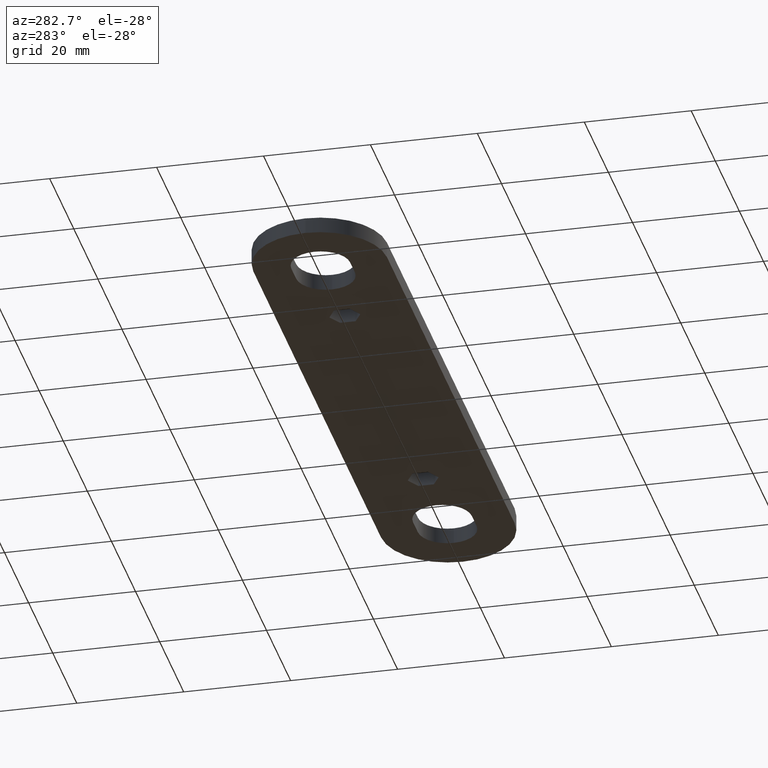
[diagram: clean part render]
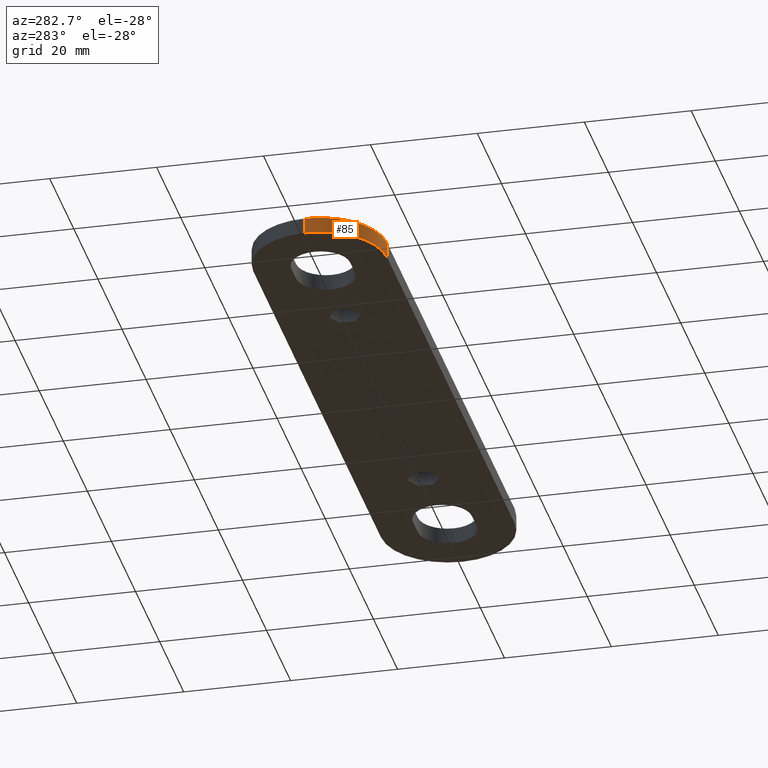
[diagram: same view with one face highlighted and labeled with its STEP entity id]
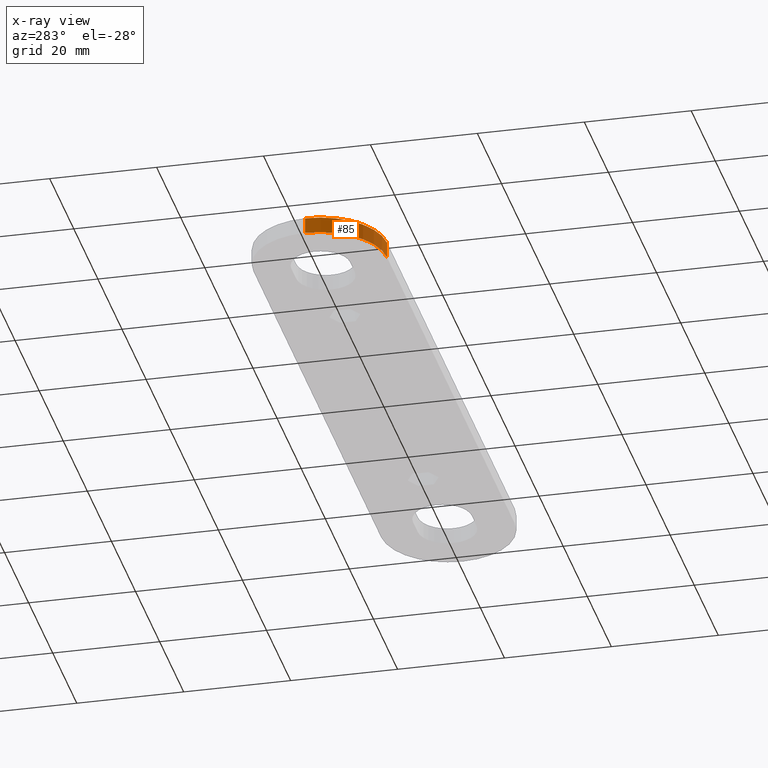
[diagram: x-ray of the same camera — body ghosted, the highlighted face saturated]
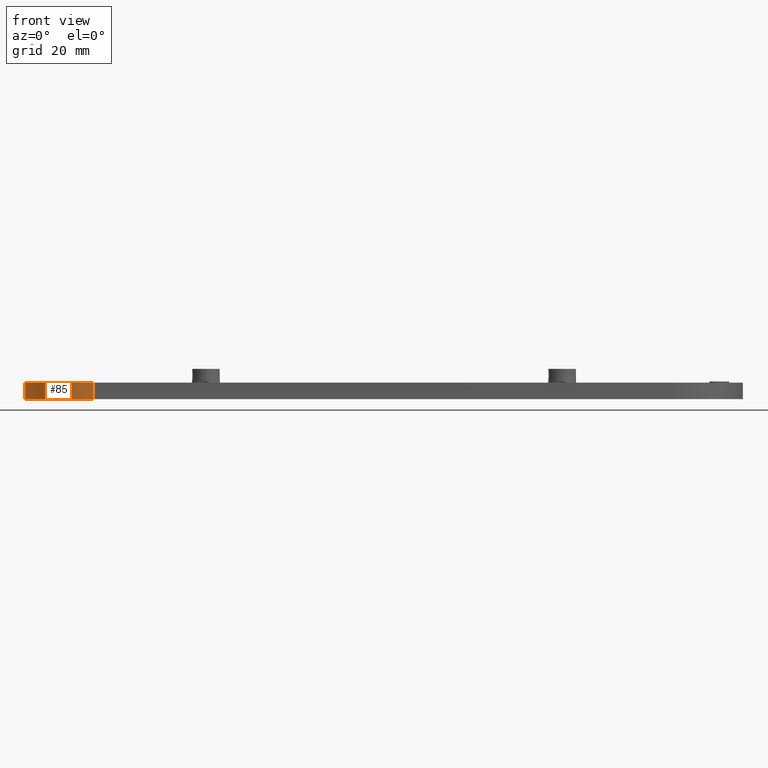
[diagram: same view with one face highlighted and labeled with its STEP entity id]
A machine part, auxiliary view. The second image highlights one B-rep face of the part: STEP entity #85.
The next image is the same camera in x-ray: the body ghosted, the highlighted face saturated — about 0% of this face is hidden behind the body in this view.
A second angle (front view) of the same face is appended — the face is thin or edge-on in the first view.
In plain terms, the highlighted cylindrical surface (partial cylindrical patch) has radius 12.5 mm, axis along (0, -0, -1).
Its self-contained STEP definition (entity closure, byte-faithful):
#85 = ADVANCED_FACE( '', ( #181 ), #182, .T. );
#181 = FACE_OUTER_BOUND( '', #338, .T. );
#182 = CYLINDRICAL_SURFACE( '', #339, 12.5000000000000 );
#338 = EDGE_LOOP( '', ( #599, #600, #601, #602 ) );
#339 = AXIS2_PLACEMENT_3D( '', #603, #604, #605 );
#599 = ORIENTED_EDGE( '', *, *, #1050, .T. );
#600 = ORIENTED_EDGE( '', *, *, #1118, .F. );
#601 = ORIENTED_EDGE( '', *, *, #1110, .F. );
#602 = ORIENTED_EDGE( '', *, *, #1090, .T. );
#603 = CARTESIAN_POINT( '', ( -53.0000000000000, -8.49741356322415E-031, -1.38777878078145E-014 ) );
#604 = DIRECTION( '', ( 5.60519385729927E-049, -6.12303176911189E-017, -1.00000000000000 ) );
#605 = DIRECTION( '', ( -6.12303176911189E-017, -1.00000000000000, 6.12303176911189E-017 ) );
#1050 = EDGE_CURVE( '', #1249, #1247, #1250, .T. );
#1090 = EDGE_CURVE( '', #1323, #1249, #1324, .T. );
#1110 = EDGE_CURVE( '', #1323, #1362, #1363, .T. );
#1118 = EDGE_CURVE( '', #1362, #1247, #1377, .T. );
#1247 = VERTEX_POINT( '', #1559 );
#1249 = VERTEX_POINT( '', #1561 );
#1250 = CIRCLE( '', #1562, 12.5000000000000 );
#1323 = VERTEX_POINT( '', #1663 );
#1324 = LINE( '', #1664, #1665 );
#1362 = VERTEX_POINT( '', #1718 );
#1363 = CIRCLE( '', #1719, 12.5000000000000 );
#1377 = LINE( '', #1735, #1736 );
#1559 = CARTESIAN_POINT( '', ( -65.5000000000000, -1.55103252290345E-015, 2.99999999999999 ) );
#1561 = CARTESIAN_POINT( '', ( -53.0000000000000, -12.5000000000000, 2.99999999999999 ) );
#1562 = AXIS2_PLACEMENT_3D( '', #1982, #1983, #1984 );
#1663 = CARTESIAN_POINT( '', ( -53.0000000000000, -12.5000000000000, -1.31124088366755E-014 ) );
#1664 = CARTESIAN_POINT( '', ( -53.0000000000000, -12.5000000000000, -1.31124088366755E-014 ) );
#1665 = VECTOR( '', #2046, 1000.00000000000 );
#1718 = CARTESIAN_POINT( '', ( -65.5000000000000, -1.73472347597681E-015, -1.38777878078145E-014 ) );
#1719 = AXIS2_PLACEMENT_3D( '', #2074, #2075, #2076 );
#1735 = CARTESIAN_POINT( '', ( -65.5000000000000, -1.73472347597681E-015, -1.38777878078145E-014 ) );
#1736 = VECTOR( '', #2094, 1000.00000000000 );
#1982 = CARTESIAN_POINT( '', ( -53.0000000000000, 1.83690953073356E-016, 2.99999999999999 ) );
#1983 = DIRECTION( '', ( 5.60519385729927E-049, -6.12303176911189E-017, -1.00000000000000 ) );
#1984 = DIRECTION( '', ( 6.12303176911189E-017, 1.00000000000000, -6.12303176911189E-017 ) );
#2046 = DIRECTION( '', ( 0.000000000000000, 6.12303176911189E-017, 1.00000000000000 ) );
#2074 = CARTESIAN_POINT( '', ( -53.0000000000000, -8.49741356322415E-031, -1.38777878078145E-014 ) );
#2075 = DIRECTION( '', ( 5.60519385729927E-049, -6.12303176911189E-017, -1.00000000000000 ) );
#2076 = DIRECTION( '', ( 6.12303176911189E-017, 1.00000000000000, -6.12303176911189E-017 ) );
#2094 = DIRECTION( '', ( 0.000000000000000, 6.12303176911189E-017, 1.00000000000000 ) );